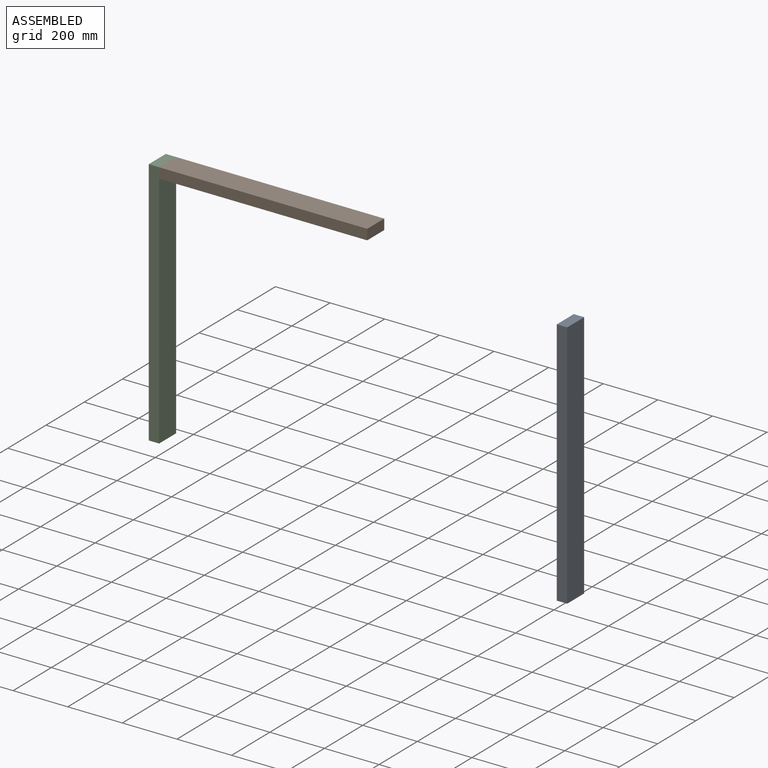
[diagram: assembled view]
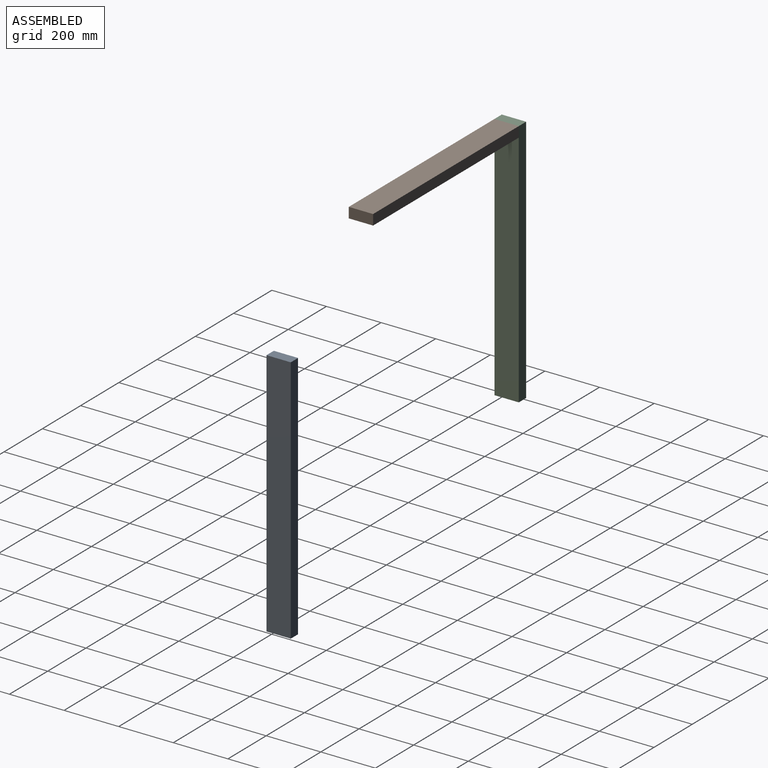
[diagram: assembled view, second angle]
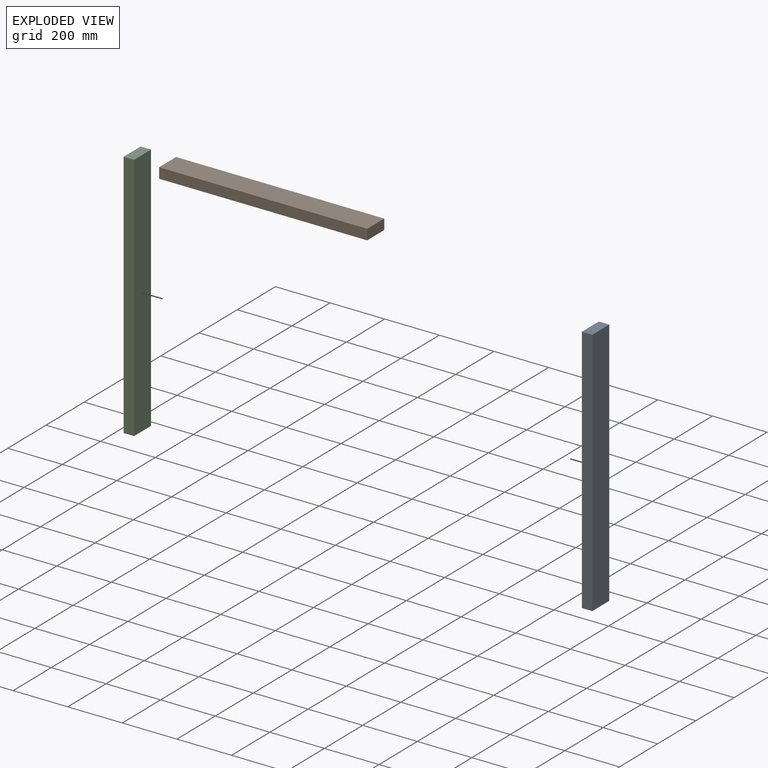
[diagram: exploded view]
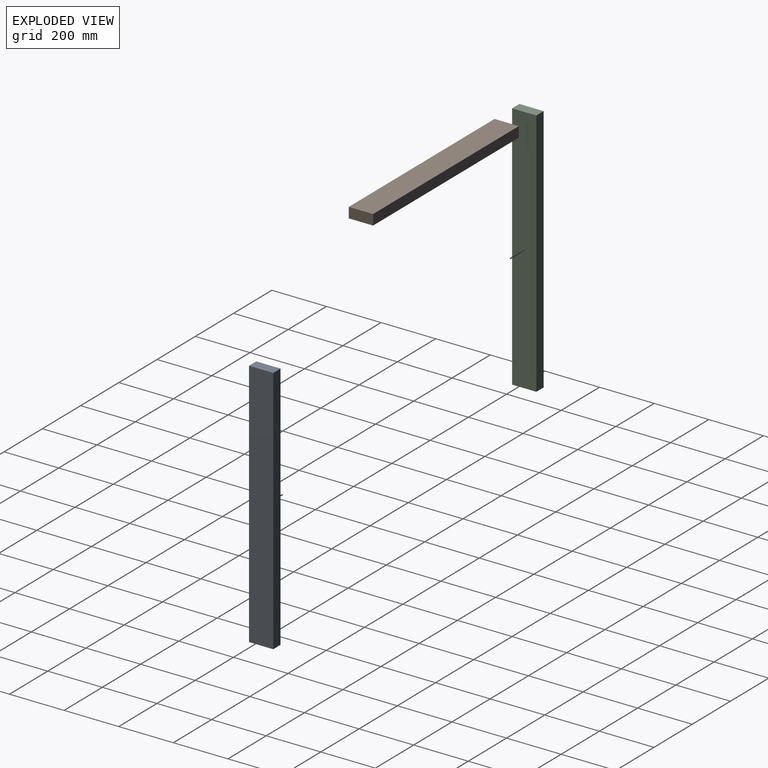
[diagram: exploded view, second angle]
ASSEMBLY  parts=3 mates=3
PART A: 6 faces, bbox 38.1x88.9x914.4 mm
  f0: plane 914.4x38.1mm, normal (0,1,0), area 34838.6mm2, adj f1,f3,f4,f5
  f1: plane 914.4x88.9mm, normal (-1,0,0), area 81290.2mm2, adj f0,f2,f4,f5
  f2: plane 914.4x38.1mm, normal (0,-1,0), area 34838.6mm2, adj f1,f3,f4,f5
  f3: plane 914.4x88.9mm, normal (1,0,0), area 81290.2mm2, adj f0,f2,f4,f5
  f4: plane 88.9x38.1mm, normal (0,0,1), area 3387.1mm2, adj f0,f1,f2,f3
  f5: plane 88.9x38.1mm, normal (0,0,-1), area 3387.1mm2, adj f0,f1,f2,f3
PART B: 6 faces, bbox 762x38.1x88.9 mm
  f0: plane 762x38.1mm, normal (0,0,1), area 29032.2mm2, adj f1,f3,f4,f5
  f1: plane 762x88.9mm, normal (0,-1,0), area 67741.8mm2, adj f0,f2,f4,f5
  f2: plane 762x38.1mm, normal (0,0,-1), area 29032.2mm2, adj f1,f3,f4,f5
  f3: plane 762x88.9mm, normal (0,1,0), area 67741.8mm2, adj f0,f2,f4,f5
  f4: plane 88.9x38.1mm, normal (1,0,0), area 3387.1mm2, adj f0,f1,f2,f3
  f5: plane 88.9x38.1mm, normal (-1,0,0), area 3387.1mm2, adj f0,f1,f2,f3
PART C: same geometry as A
PLACE A t=(-361.08,-186.61,-224.97)mm
PLACE B rot(axis=(-1,0,0),90deg) t=(-1753.46,-345.92,856.28)mm
PLACE C t=(-1756.03,-328.38,-13.81)mm
MATE planar B.f5 <-> C.f3  axis (-1,0,0) through (-1753.46,-287.11,881.54)mm
MATE planar B.f1 <-> C.f4  axis (0,0,1) through (-1372.46,-287.11,900.59)mm
MATE planar B.f0 <-> C.f0  axis (0,1,0) through (-1372.46,-242.66,881.54)mm
